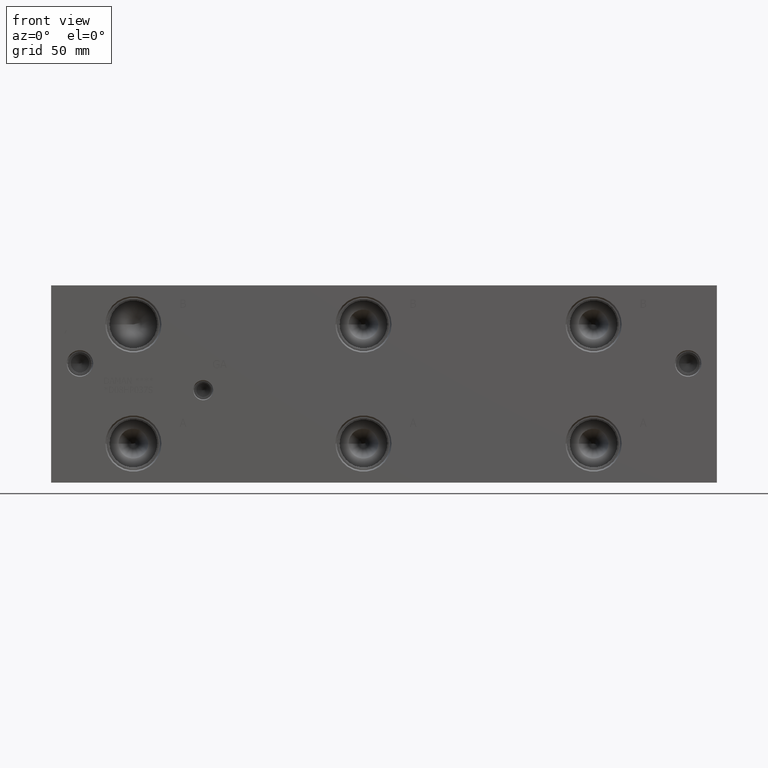
[diagram: clean part render]
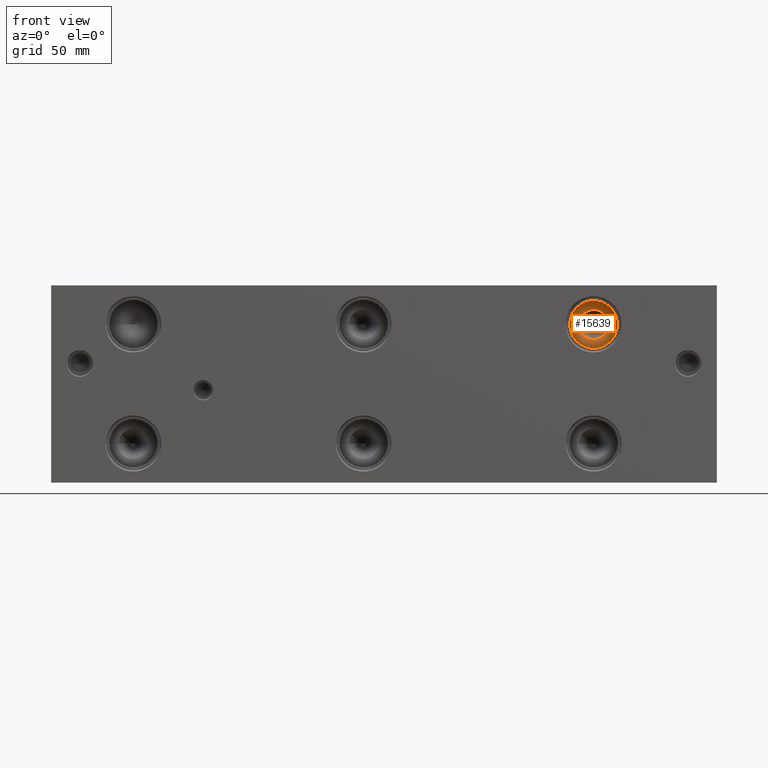
[diagram: same view with one face highlighted and labeled with its STEP entity id]
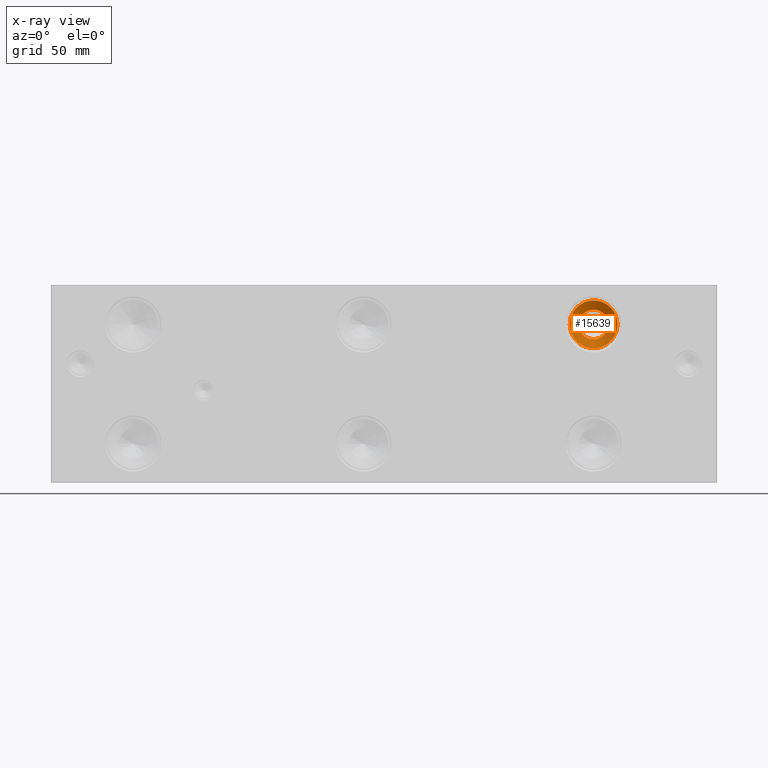
[diagram: x-ray of the same camera — body ghosted, the highlighted face saturated]
A machine part, front view. The second image highlights one B-rep face of the part: STEP entity #15639.
The next image is the same camera in x-ray: the body ghosted, the highlighted face saturated — about 0% of this face is hidden behind the body in this view.
In plain terms, the highlighted conical surface has half-angle 60 deg.
Its self-contained STEP definition (entity closure, byte-faithful):
#177=CONICAL_SURFACE('',#16483,9.22655,1.0471975511966);
#417=CIRCLE('',#16484,18.4531);
#418=CIRCLE('',#16485,11.5262434037684);
#419=CIRCLE('',#16486,18.4531);
#1942=FACE_OUTER_BOUND('',#2857,.T.);
#2857=EDGE_LOOP('',(#13357,#13358,#13359,#13360,#13361));
#4328=LINE('',#26428,#5696);
#5696=VECTOR('',#19481,9.22655);
#7377=VERTEX_POINT('',#26424);
#7378=VERTEX_POINT('',#26425);
#7379=VERTEX_POINT('',#26427);
#9464=EDGE_CURVE('',#7377,#7378,#417,.T.);
#9465=EDGE_CURVE('',#7378,#7379,#4328,.T.);
#9466=EDGE_CURVE('',#7379,#7379,#418,.T.);
#9467=EDGE_CURVE('',#7378,#7377,#419,.T.);
#13357=ORIENTED_EDGE('',*,*,#9464,.T.);
#13358=ORIENTED_EDGE('',*,*,#9465,.T.);
#13359=ORIENTED_EDGE('',*,*,#9466,.F.);
#13360=ORIENTED_EDGE('',*,*,#9465,.F.);
#13361=ORIENTED_EDGE('',*,*,#9467,.T.);
#15639=ADVANCED_FACE('',(#1942),#177,.F.);
#16483=AXIS2_PLACEMENT_3D('',#26423,#19477,#19478);
#16484=AXIS2_PLACEMENT_3D('',#26426,#19479,#19480);
#16485=AXIS2_PLACEMENT_3D('',#26429,#19482,#19483);
#16486=AXIS2_PLACEMENT_3D('',#26430,#19484,#19485);
#19477=DIRECTION('center_axis',(0.,-1.,0.));
#19478=DIRECTION('ref_axis',(1.,0.,0.));
#19479=DIRECTION('center_axis',(0.,-1.,0.));
#19480=DIRECTION('ref_axis',(1.,0.,0.));
#19481=DIRECTION('',(0.866025403784439,0.5,1.06057523872491E-16));
#19482=DIRECTION('center_axis',(0.,-1.,0.));
#19483=DIRECTION('ref_axis',(1.,0.,0.));
#19484=DIRECTION('center_axis',(0.,-1.,0.));
#19485=DIRECTION('ref_axis',(1.,0.,0.));
#26423=CARTESIAN_POINT('Origin',(419.1,40.3024011261915,122.2248));
#26424=CARTESIAN_POINT('',(437.5531,34.97545,122.2248));
#26425=CARTESIAN_POINT('',(400.6469,34.97545,122.2248));
#26426=CARTESIAN_POINT('Origin',(419.1,34.97545,122.2248));
#26427=CARTESIAN_POINT('',(407.573756596232,38.9746725204722,122.2248));
#26428=CARTESIAN_POINT('',(409.87345,40.3024011261915,122.2248));
#26429=CARTESIAN_POINT('Origin',(419.1,38.9746725204722,122.2248));
#26430=CARTESIAN_POINT('Origin',(419.1,34.97545,122.2248));